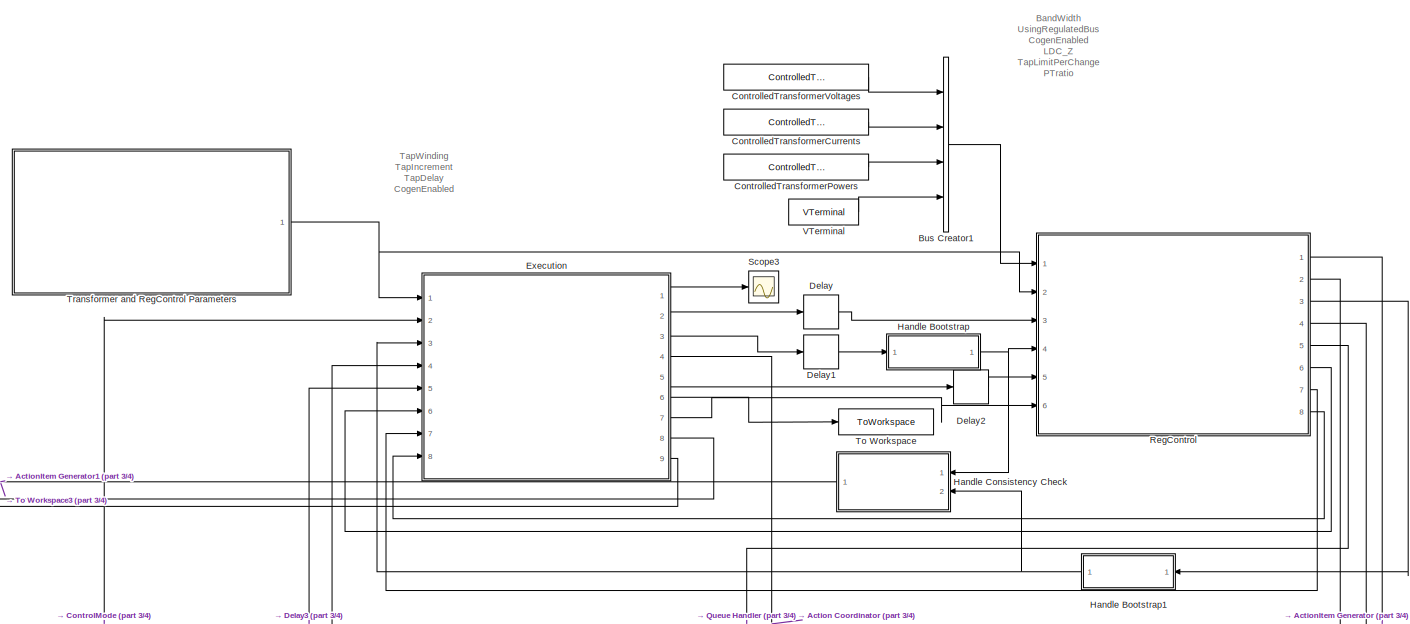
[diagram: root canvas - part 1/4, top center region]
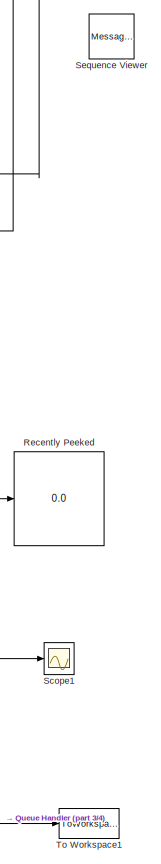
[diagram: root canvas - part 2/4, middle right region]
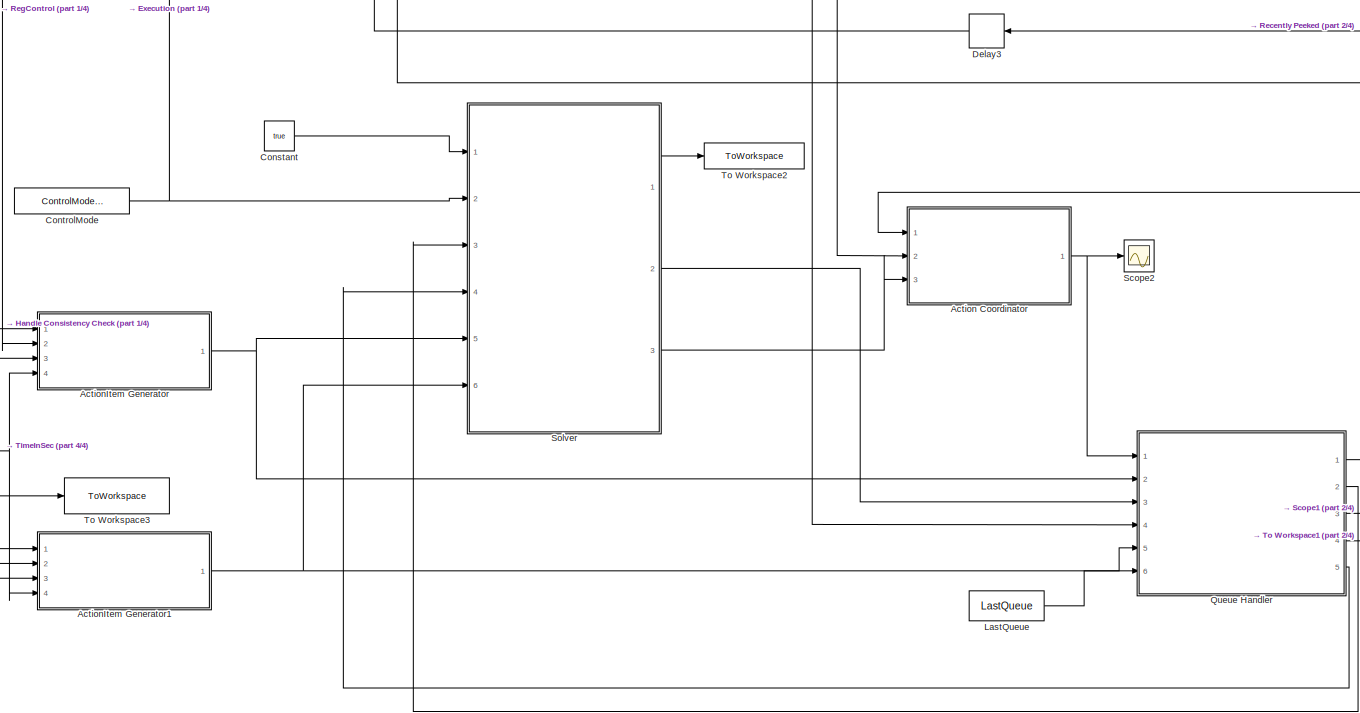
[diagram: root canvas - part 3/4, bottom center region]
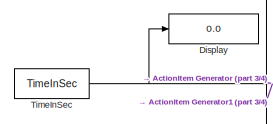
[diagram: root canvas - part 4/4, bottom left region]
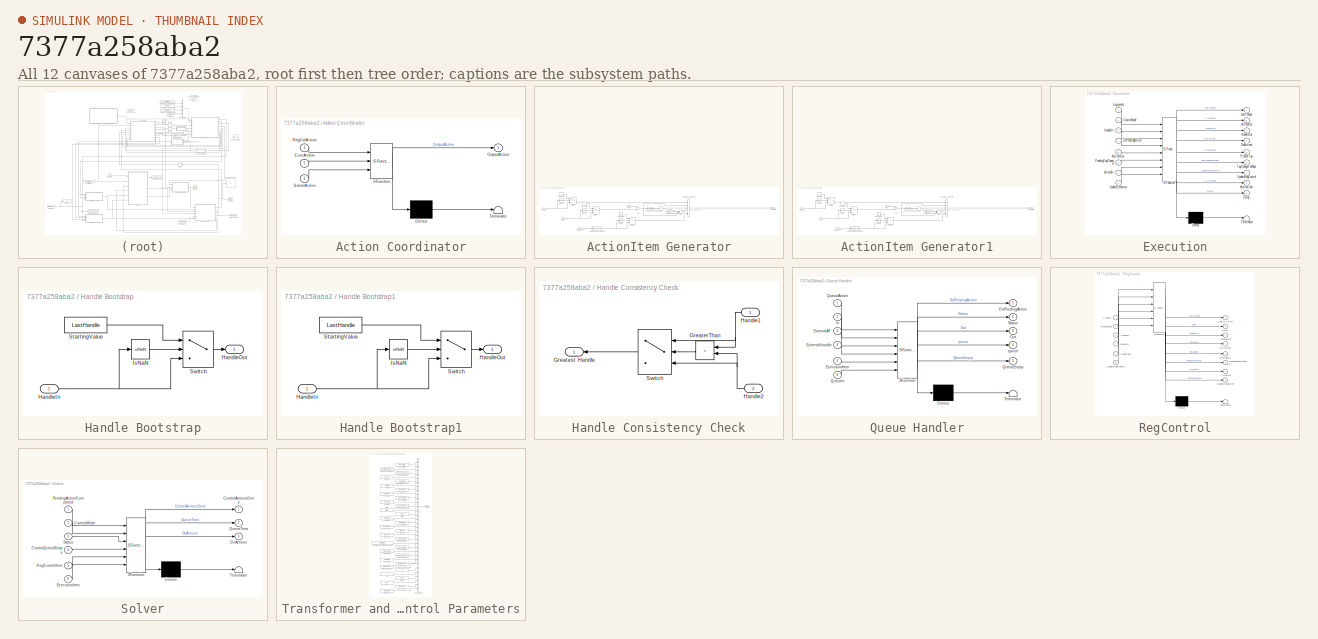
[diagram: thumbnail index - all 12 canvases of the model, root first then tree order]
MODEL slx_7377a258aba2
KIND model
CONFIG AbsTol = auto
CONFIG EnableMultiTasking = off
CONFIG FixedStep = auto
CONFIG MaxStep = auto
CONFIG MinStep = auto
CONFIG RelTol = 1e-3
CONFIG SampleTimeConstraint = Unconstrained
CONFIG Solver = VariableStepAuto
CONFIG SolverName = VariableStepAuto
CONFIG StartTime = 0.0
CONFIG StopTime = 10.0
BLOCK [SubSystem] Action Coordinator
  ErrorFcn = Stateflow.Translate.translate
  PermitHierarchicalResolution = ExplicitOnly
  Ports = [3, 1]
  RequestExecContextInheritance = off
  SFBlockType = Chart
  TreatAsAtomicUnit = on
BLOCK [Demux] Action Coordinator/ Demux 
  Outputs = 1
  Ports = [1, 1]
BLOCK [S-Function] Action Coordinator/ SFunction 
  EnableBusSupport = on
  FunctionName = sf_sfun
  InputPortMessageModes = m,m,m
  OutputPortMessageModes = n,m
  PortCounts = [3 2]
  Ports = [3, 2]
  SFcnIsStateOwnerBlock = off
  SFunctionDeploymentMode = off
  Tag = Stateflow S-Function regcontrol_model_1ph 4
BLOCK [Terminator] Action Coordinator/ Terminator 
BLOCK [Inport] Action Coordinator/ExecAction
  IconDisplay = Port number
  Port = 2
BLOCK [Outport] Action Coordinator/OutputAction
  IconDisplay = Port number
BLOCK [Inport] Action Coordinator/RegCtrlAction
  IconDisplay = Port number
BLOCK [Inport] Action Coordinator/SolverAction
  IconDisplay = Port number
  Port = 3
BLOCK [SubSystem] ActionItem Generator
  Ports = [4, 1]
  RequestExecContextInheritance = off
BLOCK [Inport] ActionItem Generator/ActionCode
  IconDisplay = Port number
  Port = 2
BLOCK [DataTypeConversion] ActionItem Generator/ActionCodesToDouble
  OutDataTypeStr = double
  RndMeth = Floor
  SaturateOnIntegerOverflow = off
BLOCK [Outport] ActionItem Generator/ActionItem
  IconDisplay = Port number
BLOCK [Sum] ActionItem Generator/Add
  InputSameDT = off
  OutDataTypeStr = Inherit: Inherit via internal rule
  Ports = [2, 1]
  SaturateOnIntegerOverflow = off
BLOCK [Constant] ActionItem Generator/Constant
BLOCK [Constant] ActionItem Generator/Constant1
  Value = 0
BLOCK [Constant] ActionItem Generator/Constant2
BLOCK [Inport] ActionItem Generator/Delay
  IconDisplay = Port number
  Port = 3
BLOCK [Inport] ActionItem Generator/Handle
  IconDisplay = Port number
BLOCK [Rounding] ActionItem Generator/Hour
BLOCK [Gain] ActionItem Generator/HoursToSeconds
  Gain = 3600
  OutDataTypeStr = Inherit: Inherit via internal rule
  ParamDataTypeStr = Inherit: Inherit via internal rule
  SaturateOnIntegerOverflow = off
BLOCK [RelationalOperator] ActionItem Generator/IsNaN
  InputSameDT = off
  Operator = isNaN
  OutDataTypeStr = boolean
  Ports = [1, 1]
  RndMeth = Simplest
BLOCK [RelationalOperator] ActionItem Generator/IsNaN1
  InputSameDT = off
  Operator = isNaN
  OutDataTypeStr = boolean
  Ports = [1, 1]
  RndMeth = Simplest
BLOCK [RelationalOperator] ActionItem Generator/IsNaN2
  InputSameDT = off
  Operator = isNaN
  OutDataTypeStr = boolean
  Ports = [1, 1]
  RndMeth = Simplest
BLOCK [Sum] ActionItem Generator/Sec
  InputSameDT = off
  Inputs = -+
  OutDataTypeStr = Inherit: Inherit via internal rule
  Ports = [2, 1]
  SaturateOnIntegerOverflow = off
BLOCK [Gain] ActionItem Generator/SecondsToHours
  Gain = 1/3600
  OutDataTypeStr = Inherit: Inherit via internal rule
  ParamDataTypeStr = Inherit: Inherit via internal rule
  SaturateOnIntegerOverflow = off
BLOCK [Switch] ActionItem Generator/Switch
  Criteria = u2 ~= 0
  InputSameDT = off
  SaturateOnIntegerOverflow = off
BLOCK [Switch] ActionItem Generator/Switch1
  Criteria = u2 ~= 0
  InputSameDT = off
  SaturateOnIntegerOverflow = off
BLOCK [Switch] ActionItem Generator/Switch2
  Criteria = u2 ~= 0
  InputSameDT = off
  SaturateOnIntegerOverflow = off
BLOCK [Inport] ActionItem Generator/Time
  IconDisplay = Port number
  Port = 4
BLOCK [Concatenate] ActionItem Generator/Vector Concatenate1
  NumInputs = 5
  Ports = [5, 1]
BLOCK [SubSystem] ActionItem Generator1
  Ports = [4, 1]
  RequestExecContextInheritance = off
BLOCK [Inport] ActionItem Generator1/ActionCode
  IconDisplay = Port number
  Port = 2
BLOCK [DataTypeConversion] ActionItem Generator1/ActionCodesToDouble
  OutDataTypeStr = double
  RndMeth = Floor
  SaturateOnIntegerOverflow = off
BLOCK [Outport] ActionItem Generator1/ActionItem
  IconDisplay = Port number
BLOCK [Sum] ActionItem Generator1/Add
  InputSameDT = off
  OutDataTypeStr = Inherit: Inherit via internal rule
  Ports = [2, 1]
  SaturateOnIntegerOverflow = off
BLOCK [Constant] ActionItem Generator1/Constant
BLOCK [Constant] ActionItem Generator1/Constant1
  Value = 0
BLOCK [Constant] ActionItem Generator1/Constant2
BLOCK [Inport] ActionItem Generator1/Delay
  IconDisplay = Port number
  Port = 3
BLOCK [Inport] ActionItem Generator1/Handle
  IconDisplay = Port number
BLOCK [Rounding] ActionItem Generator1/Hour
BLOCK [Gain] ActionItem Generator1/HoursToSeconds
  Gain = 3600
  OutDataTypeStr = Inherit: Inherit via internal rule
  ParamDataTypeStr = Inherit: Inherit via internal rule
  SaturateOnIntegerOverflow = off
BLOCK [RelationalOperator] ActionItem Generator1/IsNaN
  InputSameDT = off
  Operator = isNaN
  OutDataTypeStr = boolean
  Ports = [1, 1]
  RndMeth = Simplest
BLOCK [RelationalOperator] ActionItem Generator1/IsNaN1
  InputSameDT = off
  Operator = isNaN
  OutDataTypeStr = boolean
  Ports = [1, 1]
  RndMeth = Simplest
BLOCK [RelationalOperator] ActionItem Generator1/IsNaN2
  InputSameDT = off
  Operator = isNaN
  OutDataTypeStr = boolean
  Ports = [1, 1]
  RndMeth = Simplest
BLOCK [Sum] ActionItem Generator1/Sec
  InputSameDT = off
  Inputs = -+
  OutDataTypeStr = Inherit: Inherit via internal rule
  Ports = [2, 1]
  SaturateOnIntegerOverflow = off
BLOCK [Gain] ActionItem Generator1/SecondsToHours
  Gain = 1/3600
  OutDataTypeStr = Inherit: Inherit via internal rule
  ParamDataTypeStr = Inherit: Inherit via internal rule
  SaturateOnIntegerOverflow = off
BLOCK [Switch] ActionItem Generator1/Switch
  Criteria = u2 ~= 0
  InputSameDT = off
  SaturateOnIntegerOverflow = off
BLOCK [Switch] ActionItem Generator1/Switch1
  Criteria = u2 ~= 0
  InputSameDT = off
  SaturateOnIntegerOverflow = off
BLOCK [Switch] ActionItem Generator1/Switch2
  Criteria = u2 ~= 0
  InputSameDT = off
  SaturateOnIntegerOverflow = off
BLOCK [Inport] ActionItem Generator1/Time
  IconDisplay = Port number
  Port = 4
BLOCK [Concatenate] ActionItem Generator1/Vector Concatenate1
  NumInputs = 5
  Ports = [5, 1]
BLOCK [BusCreator] Bus Creator1
  DisplayOption = bar
  InheritFromInputs = off
  Inputs = 4
  OutDataTypeStr = Bus: SignalBus
  Ports = [4, 1]
BLOCK [Constant] Constant
  OutDataTypeStr = boolean
  Value = true
BLOCK [Constant] ControlMode
  OutDataTypeStr = Enum: ControlModes
  Value = ControlModes.STATIC
BLOCK [Constant] ControlledTransformerCurrents
  Value = ControlledTransformerCurrents
BLOCK [Constant] ControlledTransformerPowers
  Value = ControlledTransformerPowers
BLOCK [Constant] ControlledTransformerVoltages
  Value = ControlledTransformerVoltages
BLOCK [Delay] Delay
  DelayLength = 1
  InitialCondition = 0
  InputPortMap = u0
  Ports = [1, 1]
BLOCK [Delay] Delay1
  DelayLength = 1
  InitialCondition = 0
  InputPortMap = u0
  Ports = [1, 1]
BLOCK [Delay] Delay2
  DelayLength = 1
  InitialCondition = 0
  InputPortMap = u0
  Ports = [1, 1]
BLOCK [Delay] Delay3
  DelayLength = 1
  InitialCondition = 0
  InputPortMap = u0
  Ports = [1, 1]
BLOCK [Display] Display
  Decimation = 1
  Ports = [1]
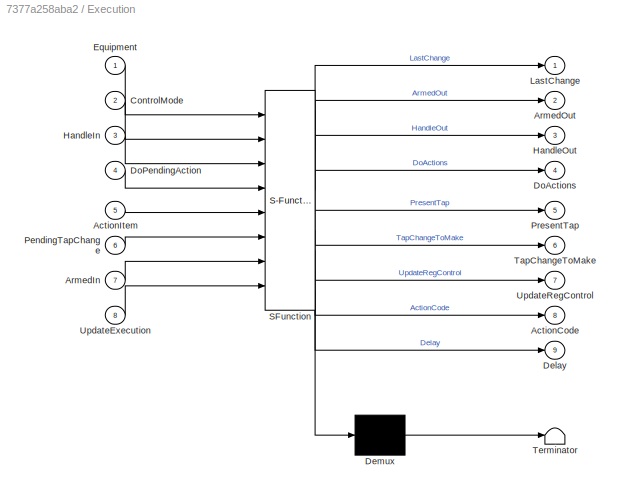
BLOCK [SubSystem] Execution
  ErrorFcn = Stateflow.Translate.translate
  PermitHierarchicalResolution = ExplicitOnly
  Ports = [8, 9]
  RequestExecContextInheritance = off
  SFBlockType = Chart
  TreatAsAtomicUnit = on
BLOCK [Demux] Execution/ Demux 
  Outputs = 1
  Ports = [1, 1]
BLOCK [S-Function] Execution/ SFunction 
  EnableBusSupport = on
  FunctionName = sf_sfun
  InputPortMessageModes = n,n,n,m,n,n,n,m
  OutputPortMessageModes = n,n,n,n,m,n,n,m,n,n
  Parameters = 0,false,uint8(16)
  PortCounts = [8 10]
  Ports = [8, 10]
  SFcnIsStateOwnerBlock = off
  SFunctionDeploymentMode = off
  Tag = Stateflow S-Function regcontrol_model_1ph 1
BLOCK [Terminator] Execution/ Terminator 
BLOCK [Outport] Execution/ActionCode
  IconDisplay = Port number
  Port = 8
BLOCK [Inport] Execution/ActionItem
  IconDisplay = Port number
  Port = 5
BLOCK [Inport] Execution/ArmedIn
  IconDisplay = Port number
  Port = 7
BLOCK [Outport] Execution/ArmedOut
  IconDisplay = Port number
  Port = 2
BLOCK [Inport] Execution/ControlMode
  IconDisplay = Port number
  Port = 2
BLOCK [Outport] Execution/Delay
  IconDisplay = Port number
  Port = 9
BLOCK [Outport] Execution/DoActions
  IconDisplay = Port number
  Port = 4
BLOCK [Inport] Execution/DoPendingAction
  IconDisplay = Port number
  Port = 4
BLOCK [Inport] Execution/Equipment
  IconDisplay = Port number
BLOCK [Inport] Execution/HandleIn
  IconDisplay = Port number
  Port = 3
BLOCK [Outport] Execution/HandleOut
  IconDisplay = Port number
  Port = 3
BLOCK [Outport] Execution/LastChange
  IconDisplay = Port number
BLOCK [Inport] Execution/PendingTapChange
  IconDisplay = Port number
  Port = 6
BLOCK [Outport] Execution/PresentTap
  IconDisplay = Port number
  Port = 5
BLOCK [Outport] Execution/TapChangeToMake
  IconDisplay = Port number
  Port = 6
BLOCK [Inport] Execution/UpdateExecution
  IconDisplay = Port number
  Port = 8
BLOCK [Outport] Execution/UpdateRegControl
  IconDisplay = Port number
  Port = 7
BLOCK [SubSystem] Handle Bootstrap
  Ports = [1, 1]
  RequestExecContextInheritance = off
BLOCK [Inport] Handle Bootstrap/HandleIn
  IconDisplay = Port number
BLOCK [Outport] Handle Bootstrap/HandleOut
  IconDisplay = Port number
BLOCK [RelationalOperator] Handle Bootstrap/IsNaN
  InputSameDT = off
  Operator = isNaN
  OutDataTypeStr = boolean
  Ports = [1, 1]
  RndMeth = Simplest
BLOCK [Constant] Handle Bootstrap/StartingValue
  Value = LastHandle
BLOCK [Switch] Handle Bootstrap/Switch
  Criteria = u2 ~= 0
  InputSameDT = off
  SaturateOnIntegerOverflow = off
BLOCK [SubSystem] Handle Bootstrap1
  Ports = [1, 1]
  RequestExecContextInheritance = off
BLOCK [Inport] Handle Bootstrap1/HandleIn
  IconDisplay = Port number
BLOCK [Outport] Handle Bootstrap1/HandleOut
  IconDisplay = Port number
BLOCK [RelationalOperator] Handle Bootstrap1/IsNaN
  InputSameDT = off
  Operator = isNaN
  OutDataTypeStr = boolean
  Ports = [1, 1]
  RndMeth = Simplest
BLOCK [Constant] Handle Bootstrap1/StartingValue
  Value = LastHandle
BLOCK [Switch] Handle Bootstrap1/Switch
  Criteria = u2 ~= 0
  InputSameDT = off
  SaturateOnIntegerOverflow = off
BLOCK [SubSystem] Handle Consistency Check
  Ports = [2, 1]
  RequestExecContextInheritance = off
BLOCK [RelationalOperator] Handle Consistency Check/GreaterThan
  InputSameDT = off
  Operator = >
  Ports = [2, 1]
  RndMeth = Simplest
BLOCK [Outport] Handle Consistency Check/Greatest Handle
  IconDisplay = Port number
BLOCK [Inport] Handle Consistency Check/Handle1
  IconDisplay = Port number
BLOCK [Inport] Handle Consistency Check/Handle2
  IconDisplay = Port number
  Port = 2
BLOCK [Switch] Handle Consistency Check/Switch
  Criteria = u2 ~= 0
  InputSameDT = off
  OutDataTypeStr = double
  SaturateOnIntegerOverflow = off
BLOCK [Constant] LastQueue
  Value = LastQueue
BLOCK [SubSystem] Queue Handler
  ErrorFcn = Stateflow.Translate.translate
  PermitHierarchicalResolution = ExplicitOnly
  Ports = [6, 5]
  RequestExecContextInheritance = off
  SFBlockType = Chart
  TreatAsAtomicUnit = on
BLOCK [Demux] Queue Handler/ Demux 
  Outputs = 1
  Ports = [1, 1]
BLOCK [S-Function] Queue Handler/ SFunction 
  EnableBusSupport = on
  FunctionName = sf_sfun
  InputPortMessageModes = m,n,n,n,n,n
  OutputPortMessageModes = n,m,m,n,n,m
  Parameters = 0,1,2,3,4,false,false;,true
  PortCounts = [6 6]
  Ports = [6, 6]
  SFcnIsStateOwnerBlock = off
  SFunctionDeploymentMode = off
  Tag = Stateflow S-Function regcontrol_model_1ph 5
BLOCK [Terminator] Queue Handler/ Terminator 
BLOCK [Outport] Queue Handler/DoPendingAction
  IconDisplay = Port number
BLOCK [Inport] Queue Handler/ExecutionItem
  IconDisplay = Port number
  Port = 5
BLOCK [Inport] Queue Handler/ExternalAT
  IconDisplay = Port number
  Port = 3
BLOCK [Inport] Queue Handler/ExternalHandle
  IconDisplay = Port number
  Port = 4
BLOCK [Inport] Queue Handler/In
  IconDisplay = Port number
  Port = 2
BLOCK [Outport] Queue Handler/Out
  IconDisplay = Port number
  Port = 3
BLOCK [Inport] Queue Handler/QueueAction
  IconDisplay = Port number
BLOCK [Outport] Queue Handler/QueueEmpty
  IconDisplay = Port number
  Port = 5
BLOCK [Inport] Queue Handler/QueueIn
  IconDisplay = Port number
  Port = 6
BLOCK [Outport] Queue Handler/Status
  IconDisplay = Port number
  Port = 2
BLOCK [Outport] Queue Handler/queue
  IconDisplay = Port number
  Port = 4
BLOCK [Display] Recently Peeked
  Decimation = 1
  Ports = [1]
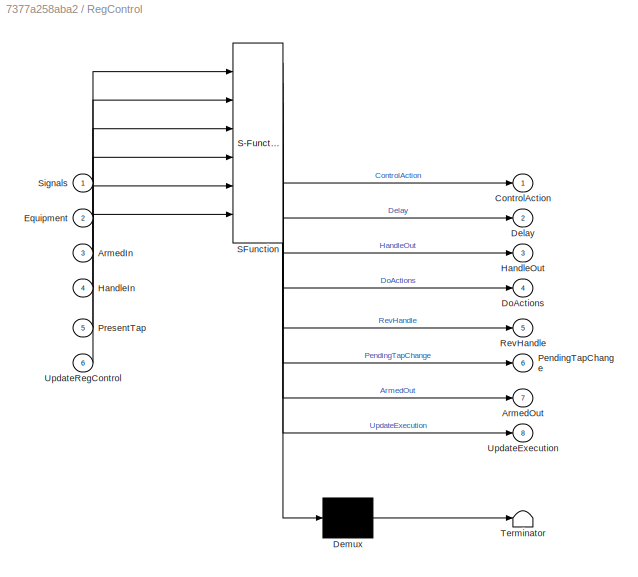
BLOCK [SubSystem] RegControl
  ErrorFcn = Stateflow.Translate.translate
  PermitHierarchicalResolution = ExplicitOnly
  Ports = [6, 8]
  RequestExecContextInheritance = off
  SFBlockType = Chart
  ShowPortLabels = SignalName
  TreatAsAtomicUnit = on
BLOCK [Demux] RegControl/ Demux 
  Outputs = 1
  Ports = [1, 1]
BLOCK [S-Function] RegControl/ SFunction 
  EnableBusSupport = on
  FunctionName = sf_sfun
  InputPortMessageModes = n,n,n,n,n,m
  OutputPortMessageModes = n,n,n,n,m,n,n,n,m
  Parameters = 0,1.0e-12,120,3,60,BaseVoltage,complex(0),double(0),false,uint8(0),uint8(1)
  PortCounts = [6 9]
  Ports = [6, 9]
  SFcnIsStateOwnerBlock = off
  SFunctionDeploymentMode = off
  Tag = Stateflow S-Function regcontrol_model_1ph 6
BLOCK [Terminator] RegControl/ Terminator 
BLOCK [Inport] RegControl/ArmedIn
  IconDisplay = Port number
  Port = 3
BLOCK [Outport] RegControl/ArmedOut
  IconDisplay = Port number
  Port = 7
BLOCK [Outport] RegControl/ControlAction
  IconDisplay = Port number
BLOCK [Outport] RegControl/Delay
  IconDisplay = Port number
  Port = 2
BLOCK [Outport] RegControl/DoActions
  IconDisplay = Port number
  Port = 4
BLOCK [Inport] RegControl/Equipment
  IconDisplay = Port number
  Port = 2
BLOCK [Inport] RegControl/HandleIn
  IconDisplay = Port number
  Port = 4
BLOCK [Outport] RegControl/HandleOut
  IconDisplay = Port number
  Port = 3
BLOCK [Outport] RegControl/PendingTapChange
  IconDisplay = Port number
  Port = 6
BLOCK [Inport] RegControl/PresentTap
  IconDisplay = Port number
  Port = 5
BLOCK [Outport] RegControl/RevHandle
  IconDisplay = Port number
  Port = 5
BLOCK [Inport] RegControl/Signals
  IconDisplay = Port number
BLOCK [Outport] RegControl/UpdateExecution
  IconDisplay = Port number
  Port = 8
BLOCK [Inport] RegControl/UpdateRegControl
  IconDisplay = Port number
  Port = 6
BLOCK [Scope] Scope1
  Floating = off
  NumInputPorts = 1
  Ports = [1]
  ScopeSpecificationString = Simulink.scopes.TimeScopeBlockCfg('CurrentConfiguration', extmgr.ConfigurationSet(extmgr.Configuration('Core','General UI',true),extmgr.Configuration('Core','Source UI',true),extmgr.Configuration('Sources','WiredSimulink',true,'DataLoggingVariableName','ScopeData1'),extmgr.Configuration('Visuals','Time Domain',true,'SerializedDisplays',{struct('MinYLimReal','-0.5','MaxYLimReal','4.5','YLabelReal',...<+1470ch>
BLOCK [Scope] Scope2
  Floating = off
  NumInputPorts = 1
  Ports = [1]
  ScopeSpecificationString = Simulink.scopes.TimeScopeBlockCfg('CurrentConfiguration', extmgr.ConfigurationSet(extmgr.Configuration('Core','General UI',true),extmgr.Configuration('Core','Source UI',true),extmgr.Configuration('Sources','WiredSimulink',true,'DataLoggingVariableName','ScopeData2'),extmgr.Configuration('Visuals','Time Domain',true,'SerializedDisplays',{struct('MinYLimReal','-0.75','MaxYLimReal','6.75','YLabelReal...<+1414ch>
BLOCK [Scope] Scope3
  Floating = off
  NumInputPorts = 1
  Ports = [1]
  ScopeSpecificationString = Simulink.scopes.TimeScopeBlockCfg('CurrentConfiguration', extmgr.ConfigurationSet(extmgr.Configuration('Core','General UI',true),extmgr.Configuration('Core','Source UI',true),extmgr.Configuration('Sources','WiredSimulink',true,'DataLoggingVariableName','ScopeData1'),extmgr.Configuration('Visuals','Time Domain',true,'SerializedDisplays',{struct('MinYLimReal','-0.75','MaxYLimReal','6.75','YLabelReal...<+1414ch>
BLOCK [MessageViewer] Sequence Viewer
BLOCK [SubSystem] Solver
  ErrorFcn = Stateflow.Translate.translate
  PermitHierarchicalResolution = ExplicitOnly
  Ports = [6, 3]
  RequestExecContextInheritance = off
  SFBlockType = Chart
  TreatAsAtomicUnit = on
BLOCK [Demux] Solver/ Demux 
  Outputs = 1
  Ports = [1, 1]
BLOCK [S-Function] Solver/ SFunction 
  EnableBusSupport = on
  FunctionName = sf_sfun
  InputPortMessageModes = n,n,m,m,n,n
  OutputPortMessageModes = n,n,n,m
  Parameters = false
  PortCounts = [6 4]
  Ports = [6, 4]
  SFcnIsStateOwnerBlock = off
  SFunctionDeploymentMode = off
  Tag = Stateflow S-Function regcontrol_model_1ph 2
BLOCK [Terminator] Solver/ Terminator 
BLOCK [Outport] Solver/ControlActionsDone
  IconDisplay = Port number
BLOCK [Inport] Solver/ControlMode
  IconDisplay = Port number
  Port = 2
BLOCK [Inport] Solver/ControlQueueEmpty
  IconDisplay = Port number
  Port = 4
BLOCK [Outport] Solver/DoActions
  IconDisplay = Port number
  Port = 3
BLOCK [Inport] Solver/ExecutionItem
  IconDisplay = Port number
  Port = 6
BLOCK [Inport] Solver/PendingActionCompleted
  IconDisplay = Port number
BLOCK [Outport] Solver/QueueTime
  IconDisplay = Port number
  Port = 2
BLOCK [Inport] Solver/RegControlItem
  IconDisplay = Port number
  Port = 5
BLOCK [Inport] Solver/Status
  IconDisplay = Port number
  Port = 3
BLOCK [Constant] TimeInSec
  Value = TimeInSec
BLOCK [ToWorkspace] To Workspace
  FixptAsFi = on
  MaxDataPoints = 1
  Ports = [1]
  SampleTime = -1
  Save2DSignal = 3-D array (concatenate along third dimension)
  VariableName = TapChangeToMake
BLOCK [ToWorkspace] To Workspace1
  FixptAsFi = on
  MaxDataPoints = 1
  Ports = [1]
  SampleTime = -1
  Save2DSignal = 3-D array (concatenate along third dimension)
  SaveFormat = Structure With Time
  VariableName = CurrQueue
BLOCK [ToWorkspace] To Workspace2
  FixptAsFi = on
  MaxDataPoints = 1
  Ports = [1]
  SampleTime = -1
  Save2DSignal = 3-D array (concatenate along third dimension)
  VariableName = ControlActionsDone
BLOCK [ToWorkspace] To Workspace3
  FixptAsFi = on
  MaxDataPoints = inf
  Ports = [1]
  SampleTime = -1
  Save2DSignal = 3-D array (concatenate along third dimension)
  SaveFormat = Timeseries
  VariableName = CurrHandle
BLOCK [SubSystem] Transformer and RegControl Parameters
  Ports = [0, 1]
  RequestExecContextInheritance = off
BLOCK [Constant] Transformer and RegControl Parameters/BandWidth
  Value = BandWidth
BLOCK [Constant] Transformer and RegControl Parameters/BaseVoltage
  Value = BaseVoltage
BLOCK [BusCreator] Transformer and RegControl Parameters/Bus Creator2
  DisplayOption = bar
  InheritFromInputs = off
  Inputs = 32
  OutDataTypeStr = Bus: EquipmentBus
  Ports = [32, 1]
BLOCK [Constant] Transformer and RegControl Parameters/CTRating
  Value = CTRating
BLOCK [Constant] Transformer and RegControl Parameters/CogenEnabled
  Value = CogenEnabled
BLOCK [Constant] Transformer and RegControl Parameters/ControlledTransformerConnection
  Value = ControlledTransformerConnection
BLOCK [Constant] Transformer and RegControl Parameters/FPTphase
  Value = FPTphase
BLOCK [Constant] Transformer and RegControl Parameters/IsInverseTime
  Value = IsInverseTime
BLOCK [Constant] Transformer and RegControl Parameters/IsReversible
  Value = IsReversible
BLOCK [Constant] Transformer and RegControl Parameters/LDC_Z
  Value = LDC_Z
BLOCK [Constant] Transformer and RegControl Parameters/MaxTap
  Value = MaxTap
BLOCK [Constant] Transformer and RegControl Parameters/MinTap
  Value = MinTap
BLOCK [Constant] Transformer and RegControl Parameters/NumConductors
  Value = NumConductors
BLOCK [Constant] Transformer and RegControl Parameters/NumPhases
  Value = NumPhases
BLOCK [Outport] Transformer and RegControl Parameters/Out1
  IconDisplay = Port number
BLOCK [Constant] Transformer and RegControl Parameters/PTratio
  Value = PTratio
BLOCK [Constant] Transformer and RegControl Parameters/PresentTap
  Value = PresentTap
BLOCK [Constant] Transformer and RegControl Parameters/R
  Value = R
BLOCK [Constant] Transformer and RegControl Parameters/RevBand
  Value = RevBand
BLOCK [Constant] Transformer and RegControl Parameters/RevDelay
  Value = RevDelay
BLOCK [Constant] Transformer and RegControl Parameters/RevPowerThreshold
  Value = RevPowerThreshold
BLOCK [Constant] Transformer and RegControl Parameters/RevVreg
  Value = RevVreg
BLOCK [Constant] Transformer and RegControl Parameters/TapDelay
  Value = TapDelay
BLOCK [Constant] Transformer and RegControl Parameters/TapIncrement
  Value = TapIncrement
BLOCK [Constant] Transformer and RegControl Parameters/TapLimitPerChange
  Value = TapLimitPerChange
BLOCK [Constant] Transformer and RegControl Parameters/TapWinding
  Value = TapWinding
BLOCK [Constant] Transformer and RegControl Parameters/TimeDelay
  Value = TimeDelay
BLOCK [Constant] Transformer and RegControl Parameters/UsingRegulatedBus
  Value = UsingRegulatedBus
BLOCK [Constant] Transformer and RegControl Parameters/Vlimit
  Value = Vlimit
BLOCK [Constant] Transformer and RegControl Parameters/Vreg
  Value = Vreg
BLOCK [Constant] Transformer and RegControl Parameters/X
  Value = X
BLOCK [Constant] Transformer and RegControl Parameters/revLDC_Z
  Value = revLDC_Z
BLOCK [Constant] Transformer and RegControl Parameters/revR
  Value = revR
BLOCK [Constant] Transformer and RegControl Parameters/revX
  Value = revX
BLOCK [Constant] VTerminal
  Value = VTerminal
ANNOTATION (root): BandWidth UsingRegulatedBus CogenEnabled LDC_Z TapLimitPerChange PTratio RevBand IsReversible RevVreg Vlimit Vreg ILDC FwdPower
ANNOTATION (root): TapWinding TapIncrement TapDelay CogenEnabled
ANNOTATION ActionItem Generator: [Handle Time Hour Sec ActionCode]'
ANNOTATION ActionItem Generator1: [Handle Time Hour Sec ActionCode]'
NET Action Coordinator:1 -> Queue Handler:1, Scope2:1
LINE ActionItem Generator/ActionCode:1 -> ActionItem Generator/ActionCodesToDouble:1
NET ActionItem Generator/ActionCodesToDouble:1 -> ActionItem Generator/IsNaN2:1, ActionItem Generator/Switch2:3
NET ActionItem Generator/Add:1 -> ActionItem Generator/Sec:2, ActionItem Generator/SecondsToHours:1, ActionItem Generator/Vector Concatenate1:2
LINE ActionItem Generator/Constant1:1 -> ActionItem Generator/Switch1:1
LINE ActionItem Generator/Constant2:1 -> ActionItem Generator/Switch2:1
LINE ActionItem Generator/Constant:1 -> ActionItem Generator/Switch:1
NET ActionItem Generator/Delay:1 -> ActionItem Generator/IsNaN1:1, ActionItem Generator/Switch1:3
NET ActionItem Generator/Handle:1 -> ActionItem Generator/IsNaN:1, ActionItem Generator/Switch:3
NET ActionItem Generator/Hour:1 -> ActionItem Generator/HoursToSeconds:1, ActionItem Generator/Vector Concatenate1:3
LINE ActionItem Generator/HoursToSeconds:1 -> ActionItem Generator/Sec:1
LINE ActionItem Generator/IsNaN1:1 -> ActionItem Generator/Switch1:2
LINE ActionItem Generator/IsNaN2:1 -> ActionItem Generator/Switch2:2
LINE ActionItem Generator/IsNaN:1 -> ActionItem Generator/Switch:2
LINE ActionItem Generator/Sec:1 -> ActionItem Generator/Vector Concatenate1:4
LINE ActionItem Generator/SecondsToHours:1 -> ActionItem Generator/Hour:1
LINE ActionItem Generator/Switch1:1 -> ActionItem Generator/Add:2
LINE ActionItem Generator/Switch2:1 -> ActionItem Generator/Vector Concatenate1:5
LINE ActionItem Generator/Switch:1 -> ActionItem Generator/Vector Concatenate1:1
LINE ActionItem Generator/Time:1 -> ActionItem Generator/Add:1
LINE ActionItem Generator/Vector Concatenate1:1 -> ActionItem Generator/ActionItem:1
LINE ActionItem Generator1/ActionCode:1 -> ActionItem Generator1/ActionCodesToDouble:1
NET ActionItem Generator1/ActionCodesToDouble:1 -> ActionItem Generator1/IsNaN2:1, ActionItem Generator1/Switch2:3
NET ActionItem Generator1/Add:1 -> ActionItem Generator1/Sec:2, ActionItem Generator1/SecondsToHours:1, ActionItem Generator1/Vector Concatenate1:2
LINE ActionItem Generator1/Constant1:1 -> ActionItem Generator1/Switch1:1
LINE ActionItem Generator1/Constant2:1 -> ActionItem Generator1/Switch2:1
LINE ActionItem Generator1/Constant:1 -> ActionItem Generator1/Switch:1
NET ActionItem Generator1/Delay:1 -> ActionItem Generator1/IsNaN1:1, ActionItem Generator1/Switch1:3
NET ActionItem Generator1/Handle:1 -> ActionItem Generator1/IsNaN:1, ActionItem Generator1/Switch:3
NET ActionItem Generator1/Hour:1 -> ActionItem Generator1/HoursToSeconds:1, ActionItem Generator1/Vector Concatenate1:3
LINE ActionItem Generator1/HoursToSeconds:1 -> ActionItem Generator1/Sec:1
LINE ActionItem Generator1/IsNaN1:1 -> ActionItem Generator1/Switch1:2
LINE ActionItem Generator1/IsNaN2:1 -> ActionItem Generator1/Switch2:2
LINE ActionItem Generator1/IsNaN:1 -> ActionItem Generator1/Switch:2
LINE ActionItem Generator1/Sec:1 -> ActionItem Generator1/Vector Concatenate1:4
LINE ActionItem Generator1/SecondsToHours:1 -> ActionItem Generator1/Hour:1
LINE ActionItem Generator1/Switch1:1 -> ActionItem Generator1/Add:2
LINE ActionItem Generator1/Switch2:1 -> ActionItem Generator1/Vector Concatenate1:5
LINE ActionItem Generator1/Switch:1 -> ActionItem Generator1/Vector Concatenate1:1
LINE ActionItem Generator1/Time:1 -> ActionItem Generator1/Add:1
LINE ActionItem Generator1/Vector Concatenate1:1 -> ActionItem Generator1/ActionItem:1
NET ActionItem Generator1:1 -> Queue Handler:5, Solver:6
NET ActionItem Generator:1 -> Queue Handler:2, Solver:5
LINE Bus Creator1:1 -> RegControl:1
LINE Constant:1 -> Solver:1
NET ControlMode:1 -> Execution:2, Solver:2
LINE ControlledTransformerCurrents:1 -> Bus Creator1:2
LINE ControlledTransformerPowers:1 -> Bus Creator1:3
LINE ControlledTransformerVoltages:1 -> Bus Creator1:1
LINE Delay1:1 -> Handle Bootstrap:1
LINE Delay2:1 -> RegControl:5
LINE Delay3:1 -> Execution:5
LINE Delay:1 -> RegControl:3
LINE Execution:1 -> Scope3:1
LINE Execution:2 -> Delay:1
LINE Execution:3 -> Delay1:1
LINE Execution:4 -> Action Coordinator:2
LINE Execution:5 -> Delay2:1
LINE Execution:6 -> To Workspace:1
LINE Execution:7 -> RegControl:6
LINE Execution:8 -> ActionItem Generator1:2
LINE Execution:9 -> ActionItem Generator1:3
NET Handle Bootstrap/HandleIn:1 -> Handle Bootstrap/IsNaN:1, Handle Bootstrap/Switch:3
LINE Handle Bootstrap/IsNaN:1 -> Handle Bootstrap/Switch:2
LINE Handle Bootstrap/StartingValue:1 -> Handle Bootstrap/Switch:1
LINE Handle Bootstrap/Switch:1 -> Handle Bootstrap/HandleOut:1
NET Handle Bootstrap1/HandleIn:1 -> Handle Bootstrap1/IsNaN:1, Handle Bootstrap1/Switch:3
LINE Handle Bootstrap1/IsNaN:1 -> Handle Bootstrap1/Switch:2
LINE Handle Bootstrap1/StartingValue:1 -> Handle Bootstrap1/Switch:1
LINE Handle Bootstrap1/Switch:1 -> Handle Bootstrap1/HandleOut:1
NET Handle Bootstrap1:1 -> Execution:3, Handle Consistency Check:2
NET Handle Bootstrap:1 -> Handle Consistency Check:1, RegControl:4
LINE Handle Consistency Check/GreaterThan:1 -> Handle Consistency Check/Switch:2
NET Handle Consistency Check/Handle1:1 -> Handle Consistency Check/GreaterThan:1, Handle Consistency Check/Switch:1
NET Handle Consistency Check/Handle2:1 -> Handle Consistency Check/GreaterThan:2, Handle Consistency Check/Switch:3
LINE Handle Consistency Check/Switch:1 -> Handle Consistency Check/Greatest Handle:1
NET Handle Consistency Check:1 -> ActionItem Generator1:1, ActionItem Generator:1, To Workspace3:1
LINE LastQueue:1 -> Queue Handler:6
LINE Queue Handler:1 -> Execution:4
LINE Queue Handler:2 -> Solver:3
NET Queue Handler:3 -> Delay3:1, Recently Peeked:1, Scope1:1
LINE Queue Handler:4 -> To Workspace1:1
LINE Queue Handler:5 -> Solver:4
LINE RegControl:1 -> ActionItem Generator:2
LINE RegControl:2 -> ActionItem Generator:3
LINE RegControl:3 -> Handle Bootstrap1:1
LINE RegControl:4 -> Action Coordinator:1
LINE RegControl:5 -> Queue Handler:4
LINE RegControl:6 -> Execution:6
LINE RegControl:7 -> Execution:7
LINE RegControl:8 -> Execution:8
LINE Solver:1 -> To Workspace2:1
LINE Solver:2 -> Queue Handler:3
LINE Solver:3 -> Action Coordinator:3
NET TimeInSec:1 -> ActionItem Generator1:4, ActionItem Generator:4, Display:1
LINE Transformer and RegControl Parameters/BandWidth:1 -> Transformer and RegControl Parameters/Bus Creator2:1
LINE Transformer and RegControl Parameters/BaseVoltage:1 -> Transformer and RegControl Parameters/Bus Creator2:21
LINE Transformer and RegControl Parameters/Bus Creator2:1 -> Transformer and RegControl Parameters/Out1:1
LINE Transformer and RegControl Parameters/CTRating:1 -> Transformer and RegControl Parameters/Bus Creator2:24
LINE Transformer and RegControl Parameters/CogenEnabled:1 -> Transformer and RegControl Parameters/Bus Creator2:3
LINE Transformer and RegControl Parameters/ControlledTransformerConnection:1 -> Transformer and RegControl Parameters/Bus Creator2:20
LINE Transformer and RegControl Parameters/FPTphase:1 -> Transformer and RegControl Parameters/Bus Creator2:16
LINE Transformer and RegControl Parameters/IsInverseTime:1 -> Transformer and RegControl Parameters/Bus Creator2:26
LINE Transformer and RegControl Parameters/IsReversible:1 -> Transformer and RegControl Parameters/Bus Creator2:9
LINE Transformer and RegControl Parameters/LDC_Z:1 -> Transformer and RegControl Parameters/Bus Creator2:4
LINE Transformer and RegControl Parameters/MaxTap:1 -> Transformer and RegControl Parameters/Bus Creator2:18
LINE Transformer and RegControl Parameters/MinTap:1 -> Transformer and RegControl Parameters/Bus Creator2:17
LINE Transformer and RegControl Parameters/NumConductors:1 -> Transformer and RegControl Parameters/Bus Creator2:23
LINE Transformer and RegControl Parameters/NumPhases:1 -> Transformer and RegControl Parameters/Bus Creator2:25
LINE Transformer and RegControl Parameters/PTratio:1 -> Transformer and RegControl Parameters/Bus Creator2:6
LINE Transformer and RegControl Parameters/PresentTap:1 -> Transformer and RegControl Parameters/Bus Creator2:22
LINE Transformer and RegControl Parameters/R:1 -> Transformer and RegControl Parameters/Bus Creator2:27
LINE Transformer and RegControl Parameters/RevBand:1 -> Transformer and RegControl Parameters/Bus Creator2:7
LINE Transformer and RegControl Parameters/RevDelay:1 -> Transformer and RegControl Parameters/Bus Creator2:8
LINE Transformer and RegControl Parameters/RevPowerThreshold:1 -> Transformer and RegControl Parameters/Bus Creator2:11
LINE Transformer and RegControl Parameters/RevVreg:1 -> Transformer and RegControl Parameters/Bus Creator2:10
LINE Transformer and RegControl Parameters/TapDelay:1 -> Transformer and RegControl Parameters/Bus Creator2:14
LINE Transformer and RegControl Parameters/TapIncrement:1 -> Transformer and RegControl Parameters/Bus Creator2:19
LINE Transformer and RegControl Parameters/TapLimitPerChange:1 -> Transformer and RegControl Parameters/Bus Creator2:5
LINE Transformer and RegControl Parameters/TapWinding:1 -> Transformer and RegControl Parameters/Bus Creator2:15
LINE Transformer and RegControl Parameters/TimeDelay:1 -> Transformer and RegControl Parameters/Bus Creator2:32
LINE Transformer and RegControl Parameters/UsingRegulatedBus:1 -> Transformer and RegControl Parameters/Bus Creator2:2
LINE Transformer and RegControl Parameters/Vlimit:1 -> Transformer and RegControl Parameters/Bus Creator2:12
LINE Transformer and RegControl Parameters/Vreg:1 -> Transformer and RegControl Parameters/Bus Creator2:13
LINE Transformer and RegControl Parameters/X:1 -> Transformer and RegControl Parameters/Bus Creator2:28
LINE Transformer and RegControl Parameters/revLDC_Z:1 -> Transformer and RegControl Parameters/Bus Creator2:31
LINE Transformer and RegControl Parameters/revR:1 -> Transformer and RegControl Parameters/Bus Creator2:29
LINE Transformer and RegControl Parameters/revX:1 -> Transformer and RegControl Parameters/Bus Creator2:30
NET Transformer and RegControl Parameters:1 -> Execution:1, RegControl:2
LINE VTerminal:1 -> Bus Creator1:4
note: NET lines group one-source signal fan-out (src -> all destinations, sorted); 1:1 wires keep LINE
CHART Execution states=28 transitions=117
  STATE_LABEL 'Push(CodeVal, DelayVal)'
  STATE_LABEL '{ActionCode = CodeVal;\nDelay = DelayVal;\nHandleOut = HandleOut + 1;\nUpdateRegControl.data = ...\nUpdateActions.HANDLE;\nsend(UpdateRegControl);\nDoActions.data = QueueActions.PUSH;\nsend(DoActions);}'
  STATE_LABEL 'UpdateLocals'
  STATE_LABEL 'Asleep\nex: UPDATED = false;'
  STATE_LABEL 'UpdateArmed\nen: ArmedOut = ArmedIn;\nex: UPDATED = true;'
  STATE_LABEL 'UpdateHandle\nen:\nif HandleIn > HandleOut\n    HandleOut = HandleIn;\nend\nex: UPDATED = true;'
  STATE_LABEL 'UpdatePendingTapChange\nen: LocalPendingTapChange = ...\n     PendingTapChange;\nex: UPDATED = true;'
  STATE_LABEL 'UpdateExecution[UpdateExecution.data == ...\nUpdateActions.HANDLE]'
  STATE_LABEL 'UpdateExecution[UpdateExecution.data == ...\nUpdateActions.PENDING_TAPCHANGE]'
  STATE_LABEL '[UPDATED]'
  STATE_LABEL '[UPDATED]'
  STATE_LABEL 'UpdateExecution[UpdateExecution.data == ...\nUpdateActions.ARMED]'
  STATE_LABEL '[UPDATED]'
  STATE_LABEL 'Asleep\nex: UPDATED = false;'
  STATE_LABEL 'UpdateArmed\nen: ArmedOut = ArmedIn;\nex: UPDATED = true;'
  STATE_LABEL 'UpdateHandle\nen:\nif HandleIn > HandleOut\n    HandleOut = HandleIn;\nend\nex: UPDATED = true;'
  STATE_LABEL 'UpdatePendingTapChange\nen: LocalPendingTapChange = ...\n     PendingTapChange;\nex: UPDATED = true;'
  STATE_LABEL 'ControlFlow'
  STATE_LABEL 'Asleep\nex: AssignInputsToLocals();\n ResetTransitionFlags();'
  STATE_LABEL 'MakingTapChange'
  STATE_LABEL 'StaticTapChange'
  STATE_LABEL '{TapChangeToMake = AtLeastOneTap(LocalPendingTapChange, TapIncrement);\n% reset to no change = change - 1 program will determin if another is needed:\nLocalPendingTapChange = 0; \nUpdateArmed(false);}'
  STATE_LABEL 'EventDrivenTapChange'
  STATE_LABEL '{[TapChangeToMake LocalPendingTapChange] =...\n OneInDirectionOf(LocalPendingTapChange, TapIncrement);\nUpdatePresentTap(TapChangeToMake);}'
  STATE_LABEL '[PendingTapChange ~= 0]'
  STATE_LABEL '{UpdateArmed(false);}'
  STATE_LABEL '{Push(ActionCodes.ACTION_TAPCHANGE, TapDelay);}'
  STATE_LABEL 'TimeDrivenTapChange'
  STATE_LABEL '{[TapChangeToMake LocalPendingTapChange] =...\n OneInDirectionOf(LocalPendingTapChange, TapIncrement);\nUpdatePresentTap(TapChangeToMake);}'
  STATE_LABEL '[LocalPendingTapChange ~= 0]'
  STATE_LABEL '{UpdateArmed(false);}'
  STATE_LABEL '{Push(ActionCodes.ACTION_TAPCHANGE, TapDelay);}'
  STATE_LABEL 'MultiRateTapChange'
  STATE_LABEL '{[TapChangeToMake, LocalPendingTapChange] =...\n OneInDirectionOf(LocalPendingTapChange, TapIncrement);\nUpdatePresentTap(TapChangeToMake);}'
  STATE_LABEL '[LocalPendingTapChange ~= 0]'
  STATE_LABEL '{UpdateArmed(false);}'
  STATE_LABEL '{Push(ActionCodes.ACTION_TAPCHANGE, TapDelay);}'
  STATE_LABEL 'Finished\nen: EXIT_TAPCHANGE = true;'
  STATE_LABEL '% Check to make sure control has not reset:\n[LocalPendingTapChange == 0]'
  STATE_LABEL '{UpdateArmed(false);}'
CHART Solver states=6 transitions=46
  STATE_LABEL 'ControlFlow'
  STATE_LABEL '<!DOCTYPE HTML PUBLIC "-//W3C//DTD HTML 4.0//EN" "http://www.w3.org/TR/REC-html40/strict.dtd">\n<html><head><meta name="qrichtext" content="1" /><style type="text/css">\np, li { white-space: pre-wrap; }\n</style></head><body style=" font-family:\'Helvetica\'; font-size:12px; font-weight:400; font-style:normal;">\n<p style=" margin-top:0px; margin-bottom:0px; margin-left:0px; margin-right:0px; -qt-block-...<+551ch>'
  STATE_LABEL '<!DOCTYPE HTML PUBLIC "-//W3C//DTD HTML 4.0//EN" "http://www.w3.org/TR/REC-html40/strict.dtd">\n<html><head><meta name="qrichtext" content="1" /><style type="text/css">\np, li { white-space: pre-wrap; }\n</style></head><body style=" font-family:\'Helvetica\'; font-size:12px; font-weight:400; font-style:normal;">\n<p style=" margin-top:0px; margin-bottom:0px; margin-left:0px; margin-right:0px; -qt-block-...<+561ch>'
  STATE_LABEL '<!DOCTYPE HTML PUBLIC "-//W3C//DTD HTML 4.0//EN" "http://www.w3.org/TR/REC-html40/strict.dtd">\n<html><head><meta name="qrichtext" content="1" /><style type="text/css">\np, li { white-space: pre-wrap; }\n</style></head><body style=" font-family:\'Helvetica\'; font-size:12px; font-weight:400; font-style:normal;">\n<p style=" margin-top:0px; margin-bottom:0px; margin-left:0px; margin-right:0px; -qt-block-...<+553ch>'  <repeated x4 — deduplicated; at blocks: Solver>
  STATE_LABEL '{TimeInSec = RegControlItem(NewCtrlQueueFields.Time);}'
  STATE_LABEL '[ControlMode == ControlModes.STATIC]'
  STATE_LABEL '[LocalControlQueueEmpty]\n% execute nearest set of control actions, but leave time where it is'
  STATE_LABEL '{QueueTime = 0; %[0 0] xHour, xSec\nDoActions.data = QueueActions.DO_NEAREST_ACTIONS;\nsend(DoActions);\n% ignores time advancement\n}'
  STATE_LABEL '{ControlActionsDone = true;}'
  STATE_LABEL '[ControlMode == ControlModes.EVENTDRIVEN]\n% execute nearest set of control actions and advance time to that time'
  STATE_LABEL '{QueueTime = TimeInSec; %xHour, xSec\nDoActions.data = QueueActions.DO_NEAREST_ACTIONS;\nsend(DoActions);}'
  STATE_LABEL '[~PendingActionCompleted]'
  STATE_LABEL '{ControlActionsDone = true;\n% advances time to the next event\n}'
  STATE_LABEL '[ControlMode == ControlModes.TIMEDRIVEN]\n % Do all actions having and action time <= specified time'
  STATE_LABEL '{QueueTime = TimeInSec; %xHour, xSec\nDoActions.data = QueueActions.DO_ACTIONS;\nsend(DoActions);}'
  STATE_LABEL '[~PendingActionCompleted]'
  STATE_LABEL '{ControlActionsDone = true;\n}'
  STATE_LABEL '[ControlMode == ControlModes.MULTIRATE]\n % Execute the nearest set of control actions, but leave time where it is'
  STATE_LABEL '{QueueTime =TimeInSec; %xHour, xSec\nDoActions.data = QueueActions.DO_MULTIRATE;\nsend(DoActions);}'
  STATE_LABEL '[~PendingActionCompleted]'
  STATE_LABEL '{ControlActionsDone = true;\n}'
  STATE_LABEL '<!DOCTYPE HTML PUBLIC "-//W3C//DTD HTML 4.0//EN" "http://www.w3.org/TR/REC-html40/strict.dtd">\n<html><head><meta name="qrichtext" content="1" /><style type="text/css">\np, li { white-space: pre-wrap; }\n</style></head><body style=" font-family:\'Helvetica\'; font-size:12px; font-weight:400; font-style:normal;">\n<p style=" margin-top:0px; margin-bottom:0px; margin-left:0px; margin-right:0px; -qt-block-...<+551ch>'
  STATE_LABEL '<!DOCTYPE HTML PUBLIC "-//W3C//DTD HTML 4.0//EN" "http://www.w3.org/TR/REC-html40/strict.dtd">\n<html><head><meta name="qrichtext" content="1" /><style type="text/css">\np, li { white-space: pre-wrap; }\n</style></head><body style=" font-family:\'Helvetica\'; font-size:12px; font-weight:400; font-style:normal;">\n<p style=" margin-top:0px; margin-bottom:0px; margin-left:0px; margin-right:0px; -qt-block-...<+561ch>'
  STATE_LABEL 'QueueEmptyCase\nen: LocalControlQueueEmpty = true;'
CHART Action Coordinator states=4 transitions=7
  STATE_LABEL 'Asleep'
  STATE_LABEL 'SendingRegCtrlAction\nen:OutputAction.data = ...\n    RegCtrlAction.data;\nsend(OutputAction);'
  STATE_LABEL 'SendingSolverAction\nen:OutputAction.data = ...\n    SolverAction.data;\nsend(OutputAction);'
  STATE_LABEL 'SendingExecAction\nen:OutputAction.data = ...\n    ExecAction.data;\nsend(OutputAction);'
CHART Queue Handler states=30 transitions=105
  STATE_LABEL 'Executive'
  STATE_LABEL 'Asleep\nex: Status.data = Statuses.READY; % reset status\n INTERNAL_DONE = false;\n EXECUTIVE_DONE = false;'
  STATE_LABEL 'DoNearestActions'
  STATE_LABEL 'WaitOnPeek\nen: send(QUEUE_PEEK, Internal);'
  STATE_LABEL 'WaitOnPop\nen: send(QUEUE_POP, Internal);'
  STATE_LABEL 'ErrorNoItems\nen: Status.data = ...\n     Statuses.ERROR;\n send(Status);'
  STATE_LABEL '% do only those actions with the same delay time as the first action time return time\n{q_len_initial = GetQueueSize;\nPendingActionsCompleted = false; % local for now\n}'
  STATE_LABEL '[q_len_initial > 0]'
  STATE_LABEL '{INTERNAL_DONE = false;\nActionTime = uint8(ExternalAT); % peek with given AT\n}'
  STATE_LABEL '[jj <= q_len_initial]'
  STATE_LABEL '{INTERNAL_DONE = false;}'
  STATE_LABEL '[INTERNAL_DONE]\n{ActionTime = uint8(Out(QF.Time));\nQHour = Out(QF.Hour);\nQSec = Out(QF.Sec);\njj = 1;}'
  STATE_LABEL '[INTERNAL_DONE]\n%send(DoPendingAction);'
  STATE_LABEL '{jj = jj + 1;}'
  STATE_LABEL '{EXECUTIVE_DONE = true;}'
  STATE_LABEL 'DoAllActions'
  STATE_LABEL 'WaitOnPop\nen: send(QUEUE_POP, Internal);'
  STATE_LABEL 'ErrorNoItems\nen: Status.data = ...\n     Statuses.ERROR;\n send(Status);'
  STATE_LABEL 'Finished'
  STATE_LABEL '{q_len_initial = GetQueueSize;}'
  STATE_LABEL '[q_len_initial ~= 0]'
  STATE_LABEL '{ActionTime = uint8(ExternalAT);\njj = 1;}'
  STATE_LABEL '[jj <= q_len_initial]'
  STATE_LABEL '{INTERNAL_DONE = false;}'
  STATE_LABEL '{jj = jj + 1;}'
  STATE_LABEL '[INTERNAL_DONE]\n%send(DoPendingAction);'
  STATE_LABEL '{EXECUTIVE_DONE = true;}'
  STATE_LABEL 'Pushing\nen: send(QUEUE_PUSH, Internal);'
  STATE_LABEL 'DeletingByHandle\nen: send(QUEUE_DELETE, Internal);'
  STATE_LABEL 'Peeking\nen: send(QUEUE_PEEK, Internal);'
  STATE_LABEL 'Popping\nen: send(QUEUE_POP, Internal);'
  STATE_LABEL 'ReadyAgain\nStatus.data = Statuses.READY;\nsend(Status);'
  STATE_LABEL 'QueueAction[QueueAction.data == ...\nQueueActions.DELETE]'
  STATE_LABEL 'QueueAction[QueueAction.data == ...\nQueueActions.PEEK]'
  STATE_LABEL 'QueueAction[QueueAction.data == ...\nQueueActions.POP]'
  STATE_LABEL 'QueueAction[QueueAction.data == ...\nQueueActions.PUSH]'
  STATE_LABEL 'QueueAction[QueueAction.data == ...\nQueueActions.DO_ALL_ACTIONS]'
  STATE_LABEL 'QueueAction[QueueAction.data == DO_NEAREST_ACTIONS]'
  STATE_LABEL '[INTERNAL_DONE]'
  STATE_LABEL '[INTERNAL_DONE]'
CHART RegControl states=52 transitions=255
  STATE_LABEL 'ControlFlow'
  STATE_LABEL 'DetermineReversePendingLookingForward'
  STATE_LABEL 'CorrectFalseReversePending'
  STATE_LABEL '[FwdPower < (-1*RevPowerThreshold)]'
  STATE_LABEL '{ReversePending = true;\nRevHandle = ...\nPush(ActionCodes.ACTION_REVERSE, ...\nRevDelay);\n}'
  STATE_LABEL 'CorrectTrueReversePending'
  STATE_LABEL '[FwdPower >= (-1*RevPowerThreshold)]'
  STATE_LABEL '% Reset ReversePending:\n% Delete RevHandle from ControlQueue\n{DoActions.data = QueueActions.DELETE;\nsend(DoActions);\nReversePending = false;\nRevHandle = 0;}'
  STATE_LABEL 'Finished\nen: GET_VOLTAGE = true;'
  STATE_LABEL '{FwdPower = -1*real( ControlledTransformerPower(ElementTerminal) );}\n% Should we reverse?'
  STATE_LABEL '[~ReversePending]'
  STATE_LABEL '[ReversePending]'
  STATE_LABEL 'DetermineReversePendingLookingReverseOrCogen'
  STATE_LABEL 'CorrectFalseReversePending'
  STATE_LABEL '[FwdPower > RevPowerThreshold]'
  STATE_LABEL '{ReversePending = true;\nRevHandle = ...\nPush(ActionCodes.ACTION_REVERSE, ...\nRevDelay);\nRevBackHandle = RevHandle;\n% RevHandle is doing double duty as \n% RevBackHandle to reduce number of \n% output ports\n}'
  STATE_LABEL 'CorrectTrueReversePending'
  STATE_LABEL '[FwdPower <= RevPowerThreshold]'
  STATE_LABEL '% Reset ReversePending:\n{RevHandle = RevBackHandle;\nReversePending = false;\nDoActions.data = QueueActions.DELETE;\nsend(DoActions);\nRevBackHandle = 0;\n}'
  STATE_LABEL 'Finished\nen: REV_NEUTRAL = true;'
  STATE_LABEL '{FwdPower = -1*real( ControlledTransformerPower(ElementTerminal) );}\n% If reversed, check if power is back in forward direction'
  STATE_LABEL '[~ReversePending]'
  STATE_LABEL '[ReversePending]'
  STATE_LABEL 'ReverseNeutralCase'
  STATE_LABEL 'Finished\nen:\nGET_VOLTAGE = true;'
  STATE_LABEL 'Exiting\nen: EXIT = true;'
  STATE_LABEL '% tap change not specified as needed:\n[~ArmedOut]'
  STATE_LABEL '{UpdatePendingTapChange(0.0);}'
  STATE_LABEL '[abs(LocalPresentTap - 1.0) < EPSILON]'
  STATE_LABEL '%{Increment = TapIncrement(TapWinding);\n%PendingTapChange = round( (1.0 - ...\n%PresentTap(TapWinding)) / Increment ) * Increment;}\n{UpdatePendingTapChange(...\nround( (1.0 - double(TapWinding)) / TapIncrement ) * TapIncrement);\n}'
  STATE_LABEL '[PendingTapChange ~= 0.0 && ~ArmedOut]'
  STATE_LABEL '{% Push ACTION_TAPCHANGE\n% to ControlQueue with TapDelay:\nPush(ActionCodes.ACTION_TAPCHANGE, TapDelay);\nUpdateArmed(true);}'
  STATE_LABEL 'GetVoltage'
  STATE_LABEL 'Finished\nen: DETERMINE_VLOCALBUS = true;'
  STATE_LABEL '[UsingRegulatedBus]'
  STATE_LABEL '{VBuffer = ControlledTransformerWindingVoltages;\n%ControlledTransformer.GetWindingVoltages;\nVcontrol = GetControlVoltage;}'
  STATE_LABEL '{TransformerConnection = ControlledTransformerConnection;\n%TransformerConnection = ControlledTransformer.Winding(ElementTerminal).Connection;\n%Vterminal = ComputeVTerminal;\n}'
  STATE_LABEL 'DetermineVlocalbus'
  STATE_LABEL 'Finished\nen: GET_VOLTAGEWLDC = true;'
  STATE_LABEL '% Voltage limit for bus connected to regulated winding; default = 0.0 (inactive)\n[VlimitActive]'
